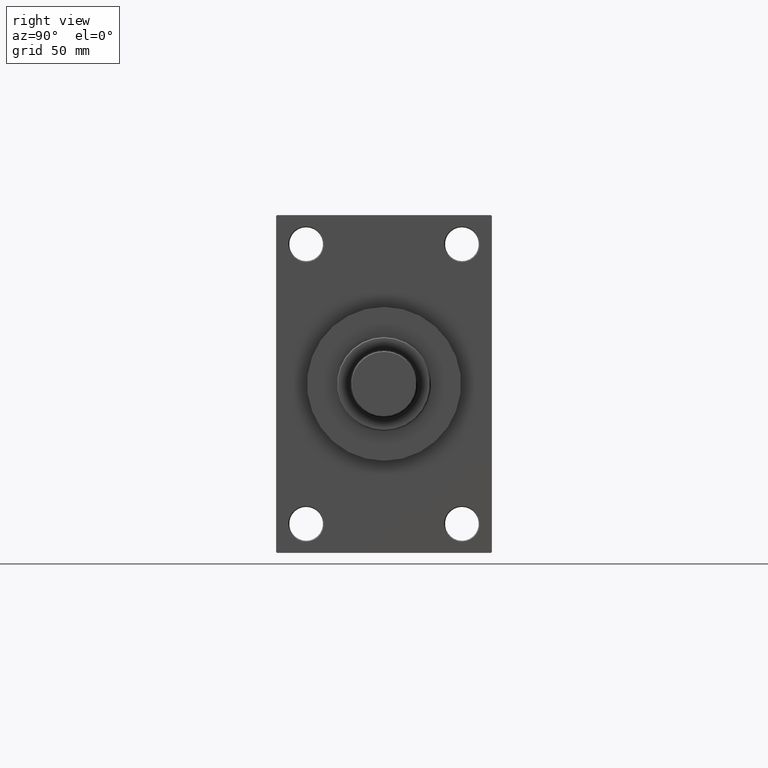
[diagram: clean part render]
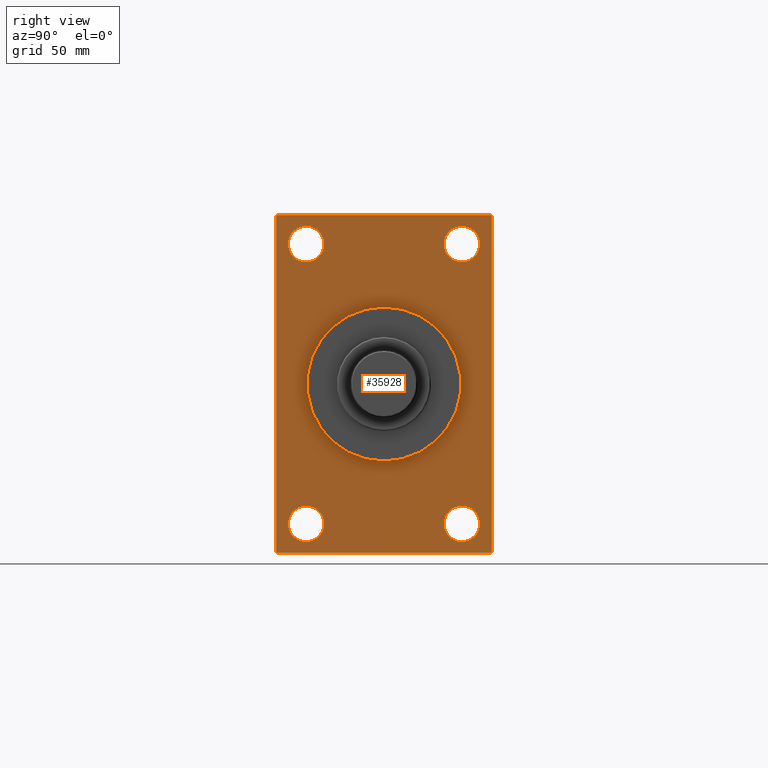
[diagram: same view with one face highlighted and labeled with its STEP entity id]
A machine part, right view. The second image highlights one B-rep face of the part: STEP entity #35928.
In plain terms, the highlighted planar face has unit normal (-1, 0, 0).
Its self-contained STEP definition (entity closure, byte-faithful):
#260 = CARTESIAN_POINT ( 'NONE',  ( 218.9999999999999716, -41.50000000000000711, 65.00000000000011369 ) ) ;
#526 = LINE ( 'NONE', #30203, #13176 ) ;
#631 = VERTEX_POINT ( 'NONE', #25150 ) ;
#1469 = AXIS2_PLACEMENT_3D ( 'NONE', #30431, #30900, #45293 ) ;
#1986 = ORIENTED_EDGE ( 'NONE', *, *, #7701, .T. ) ;
#2163 = FACE_BOUND ( 'NONE', #29284, .T. ) ;
#2280 = AXIS2_PLACEMENT_3D ( 'NONE', #23569, #8018, #11666 ) ;
#2594 = ORIENTED_EDGE ( 'NONE', *, *, #6271, .T. ) ;
#2642 = DIRECTION ( 'NONE',  ( -1.000000000000000000, 0.000000000000000000, -0.000000000000000000 ) ) ;
#2724 = CARTESIAN_POINT ( 'NONE',  ( 218.9999999999999716, 57.50000000000000000, 89.49999999999997158 ) ) ;
#2747 = LINE ( 'NONE', #36075, #38694 ) ;
#3033 = VERTEX_POINT ( 'NONE', #14424 ) ;
#3041 = VERTEX_POINT ( 'NONE', #21967 ) ;
#3122 = FACE_BOUND ( 'NONE', #35368, .T. ) ;
#3791 = VERTEX_POINT ( 'NONE', #29082 ) ;
#4511 = VERTEX_POINT ( 'NONE', #27423 ) ;
#4671 = DIRECTION ( 'NONE',  ( 1.000000000000000000, 0.000000000000000000, 0.000000000000000000 ) ) ;
#5523 = ORIENTED_EDGE ( 'NONE', *, *, #44638, .T. ) ;
#6046 = FACE_OUTER_BOUND ( 'NONE', #7739, .T. ) ;
#6271 = EDGE_CURVE ( 'NONE', #34463, #19603, #37829, .T. ) ;
#6289 = FACE_BOUND ( 'NONE', #13265, .T. ) ;
#6745 = CARTESIAN_POINT ( 'NONE',  ( 218.9999999999999716, 41.49999999999999289, 83.99999999999991473 ) ) ;
#7026 = VERTEX_POINT ( 'NONE', #41007 ) ;
#7661 = DIRECTION ( 'NONE',  ( 0.000000000000000000, 0.000000000000000000, 1.000000000000000000 ) ) ;
#7701 = EDGE_CURVE ( 'NONE', #20534, #34666, #20873, .T. ) ;
#7739 = EDGE_LOOP ( 'NONE', ( #43263, #17573, #23315, #38000, #30479, #2594, #11446, #36461 ) ) ;
#7773 = EDGE_CURVE ( 'NONE', #43215, #4511, #11339, .T. ) ;
#8018 = DIRECTION ( 'NONE',  ( -1.000000000000000000, -0.000000000000000000, -0.000000000000000000 ) ) ;
#8490 = CARTESIAN_POINT ( 'NONE',  ( 218.9999999999999716, -57.50000000000000000, -89.49999999999991473 ) ) ;
#8636 = CARTESIAN_POINT ( 'NONE',  ( 218.9999999999999716, 56.99999999999997158, 90.00000000000000000 ) ) ;
#9450 = AXIS2_PLACEMENT_3D ( 'NONE', #34178, #41485, #7661 ) ;
#9701 = PLANE ( 'NONE',  #10886 ) ;
#10088 = CARTESIAN_POINT ( 'NONE',  ( 218.9999999999999716, 57.50000000000000000, 90.00000000000000000 ) ) ;
#10147 = DIRECTION ( 'NONE',  ( 0.000000000000000000, 0.000000000000000000, 1.000000000000000000 ) ) ;
#10328 = DIRECTION ( 'NONE',  ( 0.000000000000000000, 0.000000000000000000, 1.000000000000000000 ) ) ;
#10711 = DIRECTION ( 'NONE',  ( -1.000000000000000000, -0.000000000000000000, -0.000000000000000000 ) ) ;
#10880 = EDGE_CURVE ( 'NONE', #31241, #20070, #31247, .T. ) ;
#10886 = AXIS2_PLACEMENT_3D ( 'NONE', #17961, #2642, #32785 ) ;
#11338 = CARTESIAN_POINT ( 'NONE',  ( 218.9999999999999716, 41.49999999999999289, -74.49999999999998579 ) ) ;
#11339 = LINE ( 'NONE', #26178, #34124 ) ;
#11446 = ORIENTED_EDGE ( 'NONE', *, *, #33463, .T. ) ;
#11666 = DIRECTION ( 'NONE',  ( 0.000000000000000000, 0.000000000000000000, 1.000000000000000000 ) ) ;
#11720 = DIRECTION ( 'NONE',  ( 0.000000000000000000, 0.000000000000000000, -1.000000000000000000 ) ) ;
#11769 = EDGE_CURVE ( 'NONE', #34463, #3791, #29529, .T. ) ;
#12080 = DIRECTION ( 'NONE',  ( 0.000000000000000000, 0.000000000000000000, -1.000000000000000000 ) ) ;
#12088 = ORIENTED_EDGE ( 'NONE', *, *, #35742, .T. ) ;
#12364 = VECTOR ( 'NONE', #17982, 1000.000000000000000 ) ;
#13176 = VECTOR ( 'NONE', #11720, 1000.000000000000000 ) ;
#13265 = EDGE_LOOP ( 'NONE', ( #12088, #17715 ) ) ;
#13801 = DIRECTION ( 'NONE',  ( -1.000000000000000000, -0.000000000000000000, -0.000000000000000000 ) ) ;
#14366 = DIRECTION ( 'NONE',  ( 0.000000000000000000, 0.000000000000000000, 1.000000000000000000 ) ) ;
#14424 = CARTESIAN_POINT ( 'NONE',  ( 218.9999999999999716, 56.99999999999994316, -90.00000000000000000 ) ) ;
#15532 = AXIS2_PLACEMENT_3D ( 'NONE', #24778, #43046, #47425 ) ;
#15848 = CIRCLE ( 'NONE', #22052, 9.499999999999896971 ) ;
#15963 = CARTESIAN_POINT ( 'NONE',  ( 218.9999999999999716, 0.000000000000000000, 0.000000000000000000 ) ) ;
#16495 = AXIS2_PLACEMENT_3D ( 'NONE', #15963, #33964, #12080 ) ;
#17573 = ORIENTED_EDGE ( 'NONE', *, *, #7773, .T. ) ;
#17586 = DIRECTION ( 'NONE',  ( -0.000000000000000000, -0.7071067811865474617, -0.7071067811865474617 ) ) ;
#17715 = ORIENTED_EDGE ( 'NONE', *, *, #38079, .T. ) ;
#17961 = CARTESIAN_POINT ( 'NONE',  ( 218.9999999999999716, 0.000000000000000000, 0.000000000000000000 ) ) ;
#17982 = DIRECTION ( 'NONE',  ( 0.000000000000000000, -1.000000000000000000, 0.000000000000000000 ) ) ;
#18517 = DIRECTION ( 'NONE',  ( 0.000000000000000000, -1.000000000000000000, 0.000000000000000000 ) ) ;
#18561 = EDGE_LOOP ( 'NONE', ( #45877, #26093 ) ) ;
#18567 = CIRCLE ( 'NONE', #45786, 9.499999999999896971 ) ;
#18637 = EDGE_CURVE ( 'NONE', #631, #29319, #15848, .T. ) ;
#18708 = AXIS2_PLACEMENT_3D ( 'NONE', #40908, #4671, #19017 ) ;
#19017 = DIRECTION ( 'NONE',  ( 0.000000000000000000, 0.000000000000000000, -1.000000000000000000 ) ) ;
#19345 = DIRECTION ( 'NONE',  ( 0.000000000000000000, -0.7071067811865474617, 0.7071067811865474617 ) ) ;
#19603 = VERTEX_POINT ( 'NONE', #8636 ) ;
#20070 = VERTEX_POINT ( 'NONE', #45232 ) ;
#20534 = VERTEX_POINT ( 'NONE', #23711 ) ;
#20612 = DIRECTION ( 'NONE',  ( -0.000000000000000000, 0.7071067811865474617, 0.7071067811865474617 ) ) ;
#20855 = CARTESIAN_POINT ( 'NONE',  ( 218.9999999999999716, 57.50000000000000000, -89.49999999999994316 ) ) ;
#20873 = CIRCLE ( 'NONE', #1469, 9.499999999999980460 ) ;
#21044 = CARTESIAN_POINT ( 'NONE',  ( 218.9999999999999716, -41.50000000000000711, 74.50000000000001421 ) ) ;
#21495 = VERTEX_POINT ( 'NONE', #27993 ) ;
#21967 = CARTESIAN_POINT ( 'NONE',  ( 218.9999999999999716, 41.49999999999999289, 65.00000000000011369 ) ) ;
#22052 = AXIS2_PLACEMENT_3D ( 'NONE', #21044, #43666, #10328 ) ;
#22565 = VECTOR ( 'NONE', #18517, 1000.000000000000000 ) ;
#23282 = CIRCLE ( 'NONE', #2280, 9.499999999999980460 ) ;
#23315 = ORIENTED_EDGE ( 'NONE', *, *, #44799, .F. ) ;
#23569 = CARTESIAN_POINT ( 'NONE',  ( 218.9999999999999716, -41.50000000000000711, -74.49999999999998579 ) ) ;
#23711 = CARTESIAN_POINT ( 'NONE',  ( 218.9999999999999716, 41.49999999999999289, -65.00000000000000000 ) ) ;
#24037 = CIRCLE ( 'NONE', #15532, 9.499999999999896971 ) ;
#24077 = AXIS2_PLACEMENT_3D ( 'NONE', #32128, #10711, #14366 ) ;
#24149 = CARTESIAN_POINT ( 'NONE',  ( 218.9999999999999716, -56.99999999999994316, 90.00000000000000000 ) ) ;
#24778 = CARTESIAN_POINT ( 'NONE',  ( 218.9999999999999716, -41.50000000000000711, 74.50000000000001421 ) ) ;
#25150 = CARTESIAN_POINT ( 'NONE',  ( 218.9999999999999716, -41.50000000000000711, 83.99999999999991473 ) ) ;
#25960 = VERTEX_POINT ( 'NONE', #6745 ) ;
#25996 = CARTESIAN_POINT ( 'NONE',  ( 218.9999999999999716, 57.50000000000000000, 90.00000000000000000 ) ) ;
#26093 = ORIENTED_EDGE ( 'NONE', *, *, #47586, .T. ) ;
#26177 = DIRECTION ( 'NONE',  ( -1.000000000000000000, -0.000000000000000000, -0.000000000000000000 ) ) ;
#26178 = CARTESIAN_POINT ( 'NONE',  ( 218.9999999999999716, -56.99999999999997158, -90.00000000000000000 ) ) ;
#26427 = DIRECTION ( 'NONE',  ( 0.000000000000000000, 0.000000000000000000, 1.000000000000000000 ) ) ;
#26620 = ORIENTED_EDGE ( 'NONE', *, *, #10880, .F. ) ;
#27423 = CARTESIAN_POINT ( 'NONE',  ( 218.9999999999999716, -56.99999999999997158, -90.00000000000000000 ) ) ;
#27993 = CARTESIAN_POINT ( 'NONE',  ( 218.9999999999999716, -41.50000000000000711, -65.00000000000000000 ) ) ;
#28419 = FACE_BOUND ( 'NONE', #18561, .T. ) ;
#28760 = AXIS2_PLACEMENT_3D ( 'NONE', #11338, #26177, #26427 ) ;
#29082 = CARTESIAN_POINT ( 'NONE',  ( 218.9999999999999716, 57.50000000000000000, -89.49999999999988631 ) ) ;
#29116 = ORIENTED_EDGE ( 'NONE', *, *, #42295, .T. ) ;
#29197 = EDGE_LOOP ( 'NONE', ( #39714, #26620 ) ) ;
#29284 = EDGE_LOOP ( 'NONE', ( #29116, #34523 ) ) ;
#29319 = VERTEX_POINT ( 'NONE', #260 ) ;
#29336 = DIRECTION ( 'NONE',  ( 0.000000000000000000, 0.7071067811865474617, -0.7071067811865474617 ) ) ;
#29529 = LINE ( 'NONE', #10088, #40594 ) ;
#30203 = CARTESIAN_POINT ( 'NONE',  ( 218.9999999999999716, -57.50000000000000000, 90.00000000000000000 ) ) ;
#30313 = VERTEX_POINT ( 'NONE', #24149 ) ;
#30431 = CARTESIAN_POINT ( 'NONE',  ( 218.9999999999999716, 41.49999999999999289, -74.49999999999998579 ) ) ;
#30479 = ORIENTED_EDGE ( 'NONE', *, *, #11769, .F. ) ;
#30900 = DIRECTION ( 'NONE',  ( -1.000000000000000000, -0.000000000000000000, -0.000000000000000000 ) ) ;
#31037 = VECTOR ( 'NONE', #20612, 1000.000000000000114 ) ;
#31241 = VERTEX_POINT ( 'NONE', #40924 ) ;
#31247 = CIRCLE ( 'NONE', #16495, 41.00000000000000000 ) ;
#32068 = EDGE_CURVE ( 'NONE', #30313, #7026, #2747, .T. ) ;
#32128 = CARTESIAN_POINT ( 'NONE',  ( 218.9999999999999716, 41.49999999999999289, 74.50000000000001421 ) ) ;
#32276 = CARTESIAN_POINT ( 'NONE',  ( 218.9999999999999716, 41.49999999999999289, 74.50000000000001421 ) ) ;
#32648 = CIRCLE ( 'NONE', #28760, 9.499999999999980460 ) ;
#32785 = DIRECTION ( 'NONE',  ( -0.000000000000000000, 0.000000000000000000, 1.000000000000000000 ) ) ;
#33463 = EDGE_CURVE ( 'NONE', #19603, #30313, #36464, .T. ) ;
#33724 = EDGE_CURVE ( 'NONE', #3033, #3791, #39334, .T. ) ;
#33839 = CARTESIAN_POINT ( 'NONE',  ( 218.9999999999999716, 57.50000000000000000, -90.00000000000000000 ) ) ;
#33964 = DIRECTION ( 'NONE',  ( 1.000000000000000000, 0.000000000000000000, 0.000000000000000000 ) ) ;
#34124 = VECTOR ( 'NONE', #29336, 1000.000000000000114 ) ;
#34178 = CARTESIAN_POINT ( 'NONE',  ( 218.9999999999999716, -41.50000000000000711, -74.49999999999998579 ) ) ;
#34223 = CARTESIAN_POINT ( 'NONE',  ( 218.9999999999999716, -41.50000000000000711, -83.99999999999995737 ) ) ;
#34463 = VERTEX_POINT ( 'NONE', #2724 ) ;
#34523 = ORIENTED_EDGE ( 'NONE', *, *, #18637, .T. ) ;
#34601 = EDGE_CURVE ( 'NONE', #46299, #21495, #23282, .T. ) ;
#34666 = VERTEX_POINT ( 'NONE', #42296 ) ;
#35368 = EDGE_LOOP ( 'NONE', ( #5523, #1986 ) ) ;
#35476 = VECTOR ( 'NONE', #19345, 1000.000000000000114 ) ;
#35742 = EDGE_CURVE ( 'NONE', #3041, #25960, #46639, .T. ) ;
#35928 = ADVANCED_FACE ( 'NONE', ( #2163, #28419, #3122, #6289, #43754, #6046 ), #9701, .F. ) ;
#36075 = CARTESIAN_POINT ( 'NONE',  ( 218.9999999999999716, -57.50000000000000000, 89.49999999999994316 ) ) ;
#36349 = DIRECTION ( 'NONE',  ( 0.000000000000000000, 0.000000000000000000, -1.000000000000000000 ) ) ;
#36461 = ORIENTED_EDGE ( 'NONE', *, *, #32068, .T. ) ;
#36464 = LINE ( 'NONE', #25996, #12364 ) ;
#37829 = LINE ( 'NONE', #40998, #35476 ) ;
#38000 = ORIENTED_EDGE ( 'NONE', *, *, #33724, .T. ) ;
#38079 = EDGE_CURVE ( 'NONE', #25960, #3041, #18567, .T. ) ;
#38694 = VECTOR ( 'NONE', #17586, 1000.000000000000114 ) ;
#39334 = LINE ( 'NONE', #20855, #31037 ) ;
#39714 = ORIENTED_EDGE ( 'NONE', *, *, #45989, .F. ) ;
#40594 = VECTOR ( 'NONE', #36349, 1000.000000000000000 ) ;
#40908 = CARTESIAN_POINT ( 'NONE',  ( 218.9999999999999716, 0.000000000000000000, 0.000000000000000000 ) ) ;
#40924 = CARTESIAN_POINT ( 'NONE',  ( 218.9999999999999716, 5.021051876504148963E-15, -41.00000000000000000 ) ) ;
#40998 = CARTESIAN_POINT ( 'NONE',  ( 218.9999999999999716, 56.99999999999997158, 90.00000000000000000 ) ) ;
#41007 = CARTESIAN_POINT ( 'NONE',  ( 218.9999999999999716, -57.50000000000000000, 89.49999999999994316 ) ) ;
#41153 = LINE ( 'NONE', #33839, #22565 ) ;
#41485 = DIRECTION ( 'NONE',  ( -1.000000000000000000, -0.000000000000000000, -0.000000000000000000 ) ) ;
#42295 = EDGE_CURVE ( 'NONE', #29319, #631, #24037, .T. ) ;
#42296 = CARTESIAN_POINT ( 'NONE',  ( 218.9999999999999716, 41.49999999999999289, -83.99999999999995737 ) ) ;
#43046 = DIRECTION ( 'NONE',  ( -1.000000000000000000, -0.000000000000000000, -0.000000000000000000 ) ) ;
#43215 = VERTEX_POINT ( 'NONE', #8490 ) ;
#43263 = ORIENTED_EDGE ( 'NONE', *, *, #43742, .T. ) ;
#43666 = DIRECTION ( 'NONE',  ( -1.000000000000000000, -0.000000000000000000, -0.000000000000000000 ) ) ;
#43742 = EDGE_CURVE ( 'NONE', #7026, #43215, #526, .T. ) ;
#43754 = FACE_BOUND ( 'NONE', #29197, .T. ) ;
#44638 = EDGE_CURVE ( 'NONE', #34666, #20534, #32648, .T. ) ;
#44799 = EDGE_CURVE ( 'NONE', #3033, #4511, #41153, .T. ) ;
#45232 = CARTESIAN_POINT ( 'NONE',  ( 218.9999999999999716, 0.000000000000000000, 41.00000000000000000 ) ) ;
#45237 = CIRCLE ( 'NONE', #9450, 9.499999999999980460 ) ;
#45293 = DIRECTION ( 'NONE',  ( 0.000000000000000000, 0.000000000000000000, 1.000000000000000000 ) ) ;
#45786 = AXIS2_PLACEMENT_3D ( 'NONE', #32276, #13801, #10147 ) ;
#45877 = ORIENTED_EDGE ( 'NONE', *, *, #34601, .T. ) ;
#45989 = EDGE_CURVE ( 'NONE', #20070, #31241, #46671, .T. ) ;
#46299 = VERTEX_POINT ( 'NONE', #34223 ) ;
#46639 = CIRCLE ( 'NONE', #24077, 9.499999999999896971 ) ;
#46671 = CIRCLE ( 'NONE', #18708, 41.00000000000000000 ) ;
#47425 = DIRECTION ( 'NONE',  ( 0.000000000000000000, 0.000000000000000000, 1.000000000000000000 ) ) ;
#47586 = EDGE_CURVE ( 'NONE', #21495, #46299, #45237, .T. ) ;